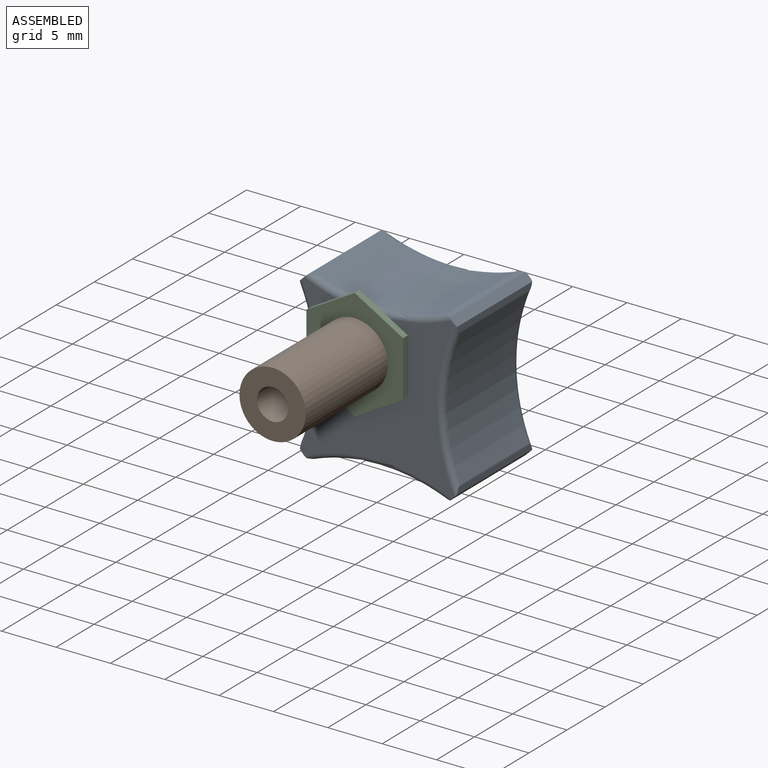
[diagram: assembled view]
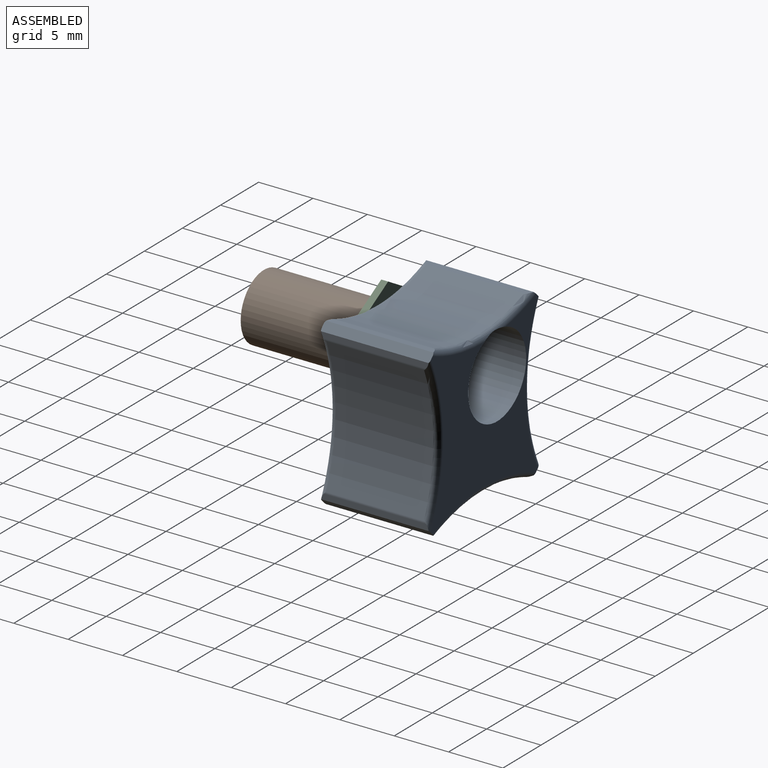
[diagram: assembled view, second angle]
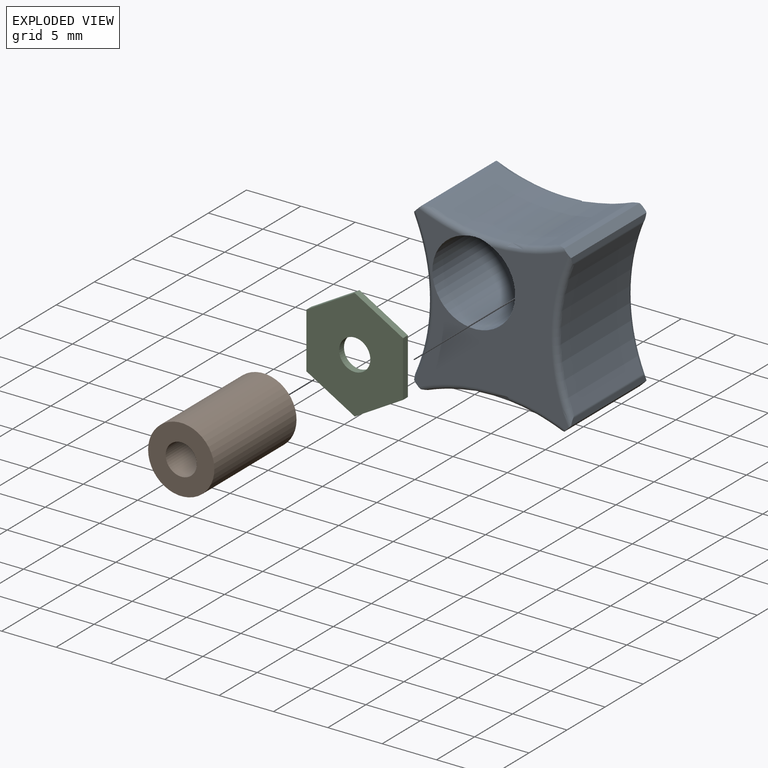
[diagram: exploded view]
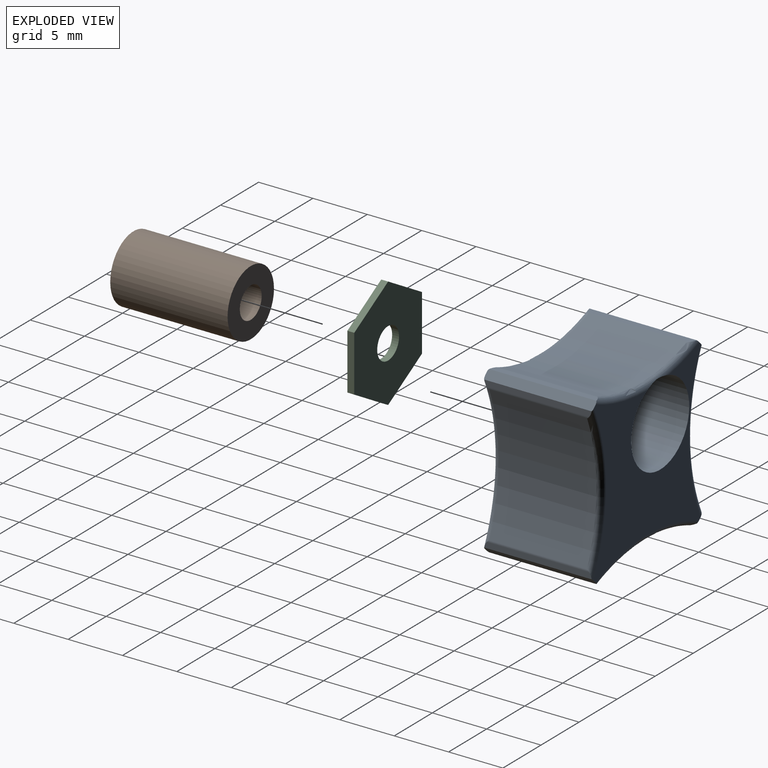
[diagram: exploded view, second angle]
ASSEMBLY  parts=3 mates=2
PART A: 35 faces, bbox 15.1x10.1x15.9 mm
  f0: cylinder r=16.51mm len=12.52mm, axis (0,1,0), area 115.8mm2, adj f23,f24,f25,f26
  f1: plane 9.94x0.58mm, normal (1,0,0), area 5.2mm2, adj f2,f23,f24,f25
  f2: plane 10.04x0.64mm, normal (0.71,0,0.71), area 9mm2, adj f1,f3,f17,f18,f24,f25,f32,f33
  f3: plane 9.93x0.59mm, normal (0,0,1), area 5.2mm2, adj f2,f32,f33,f34
  f4: cylinder r=16.51mm len=11.73mm, axis (0,1,0), area 108.2mm2, adj f31,f32,f33,f34
  f5: plane 9.93x0.59mm, normal (0,0,1), area 5.2mm2, adj f6,f31,f32,f33
  f6: plane 10.04x0.64mm, normal (-0.71,0,0.71), area 9mm2, adj f5,f7,f17,f18,f28,f29,f32,f33
  f7: plane 9.94x0.58mm, normal (-1,0,0), area 5.2mm2, adj f6,f27,f28,f29
  f8: cylinder r=16.51mm len=12.52mm, axis (0,1,0), area 115.8mm2, adj f27,f28,f29,f30
  f9: plane 9.94x0.58mm, normal (-1,0,0), area 5.2mm2, adj f10,f28,f29,f30
  f10: plane 10.04x0.64mm, normal (-0.71,0,-0.71), area 9mm2, adj f9,f11,f17,f18,f20,f21,f28,f29
  f11: plane 9.93x0.59mm, normal (0,0,-1), area 5.2mm2, adj f10,f19,f20,f21
  f12: cylinder r=16.51mm len=11.73mm, axis (0,1,0), area 108.2mm2, adj f19,f20,f21,f22
  f13: plane 9.93x0.59mm, normal (0,0,-1), area 5.2mm2, adj f14,f20,f21,f22
  f14: plane 10.04x0.64mm, normal (0.71,0,-0.71), area 9mm2, adj f13,f15,f17,f18,f20,f21,f24,f25
  f15: plane 9.94x0.58mm, normal (1,0,0), area 5.2mm2, adj f14,f24,f25,f26
  f16: cylinder r=3.81mm len=10.03mm, axis (0,1,0), area 240.2mm2, adj f17,f18,f32,f33
  f17: plane 14.83x14.07mm, normal (0,-1,0), area 106.9mm2, adj f2,f6,f10,f14,f16,f20,f24,f28
  f18: plane 14.83x14.07mm, normal (0,1,0), area 106.9mm2, adj f2,f6,f10,f14,f16,f21,f25,f29
  f19: cylinder r=0.51mm len=9.38mm, axis (0,1,0), area 1.7mm2, adj f11,f12,f20,f21
  f20: torus R=17.02mm, axis (0,-1,0), area 10.4mm2, adj f10,f11,f12,f13,f14,f17,f19,f22
  f21: torus R=17.02mm, axis (0,-1,0), area 10.4mm2, adj f10,f11,f12,f13,f14,f18,f19,f22
  f22: cylinder r=0.51mm len=9.38mm, axis (0,1,0), area 1.7mm2, adj f12,f13,f20,f21
  f23: cylinder r=0.51mm len=9.41mm, axis (0,1,0), area 1.8mm2, adj f0,f1,f24,f25
  f24: torus R=17.02mm, axis (0,-1,0), area 11.1mm2, adj f0,f1,f2,f14,f15,f17,f23,f26
  f25: torus R=17.02mm, axis (0,-1,0), area 11.1mm2, adj f0,f1,f2,f14,f15,f18,f23,f26
  f26: cylinder r=0.51mm len=9.41mm, axis (0,1,0), area 1.8mm2, adj f0,f15,f24,f25
  f27: cylinder r=0.51mm len=9.41mm, axis (0,1,0), area 1.8mm2, adj f7,f8,f28,f29
  f28: torus R=17.02mm, axis (0,-1,0), area 11.1mm2, adj f6,f7,f8,f9,f10,f17,f27,f30
  f29: torus R=17.02mm, axis (0,-1,0), area 11.1mm2, adj f6,f7,f8,f9,f10,f18,f27,f30
  f30: cylinder r=0.51mm len=9.41mm, axis (0,1,0), area 1.8mm2, adj f8,f9,f28,f29
  f31: cylinder r=0.51mm len=9.38mm, axis (0,1,0), area 1.7mm2, adj f4,f5,f32,f33
  f32: torus R=17.02mm, axis (0,-1,0), area 9.8mm2, adj f2,f3,f4,f5,f6,f16,f17,f31
  f33: torus R=17.02mm, axis (0,-1,0), area 9.8mm2, adj f2,f3,f4,f5,f6,f16,f18,f31
  f34: cylinder r=0.51mm len=9.38mm, axis (0,1,0), area 1.7mm2, adj f3,f4,f32,f33
PART B: 4 faces, bbox 6.1x10.8x6.1 mm
  f0: cylinder r=1.44mm len=10.8mm, axis (0,1,0), area 97.3mm2, adj f2,f3
  f1: cylinder r=3.05mm len=10.8mm, axis (0,1,0), area 206.7mm2, adj f2,f3
  f2: plane 6.1x6.1mm, normal (0,-1,0), area 22.7mm2, adj f0,f1
  f3: plane 6.1x6.1mm, normal (0,1,0), area 22.7mm2, adj f0,f1
PART C: 9 faces, bbox 8.9x0.6x10.3 mm
  f0: plane 4.45x2.57mm, normal (0.5,0,0.87), area 3.3mm2, adj f1,f6,f7,f8
  f1: plane 4.45x2.57mm, normal (-0.5,0,0.87), area 3.3mm2, adj f0,f2,f7,f8
  f2: plane 5.13x0.64mm, normal (-1,0,0), area 3.3mm2, adj f1,f3,f7,f8
  f3: plane 4.45x2.57mm, normal (-0.5,0,-0.87), area 3.3mm2, adj f2,f4,f7,f8
  f4: plane 4.45x2.57mm, normal (0.5,0,-0.87), area 3.3mm2, adj f3,f6,f7,f8
  f5: cylinder r=1.44mm len=2.87mm, axis (0,1,0), area 5.7mm2, adj f7,f8
  f6: plane 5.13x0.64mm, normal (1,0,0), area 3.3mm2, adj f0,f4,f7,f8
  f7: plane 10.27x8.89mm, normal (0,-1,0), area 62mm2, adj f0,f1,f2,f3,f4,f5,f6
  f8: plane 10.27x8.89mm, normal (0,1,0), area 62mm2, adj f0,f1,f2,f3,f4,f5,f6
PLACE A t=(-1.3,-2.4,-0.4)mm
PLACE B t=(-3.38,-13.07,2.17)mm
PLACE C t=(-3.38,-12.44,2.17)mm
MATE fastened C.f5 <-> B.f0  axis (0,-1,0) through (-3.38,-13.07,2.17)mm
MATE fastened C.f5 <-> A.f16  axis (0,1,0) through (-3.38,-12.44,2.17)mm
